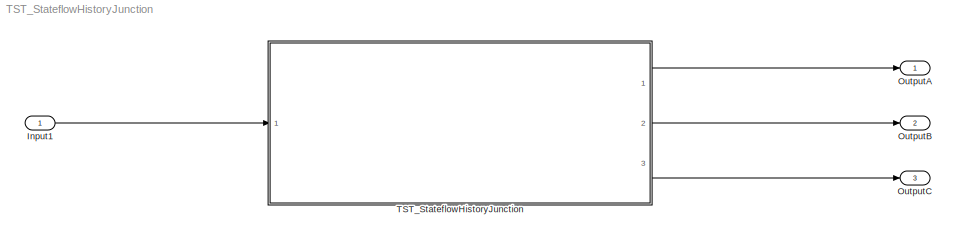
MODEL TST_StateflowHistoryJunction
KIND model
BLOCK [Inport] Input1
  BusOutputAsStruct = on
  IconDisplay = Port number
  OutDataTypeStr = uint32
  SID = 23
BLOCK [Outport] OutputA
  IconDisplay = Port number
  OutDataTypeStr = double
  PortDimensions = 1
  SID = 25
BLOCK [Outport] OutputB
  IconDisplay = Port number
  OutDataTypeStr = double
  Port = 2
  PortDimensions = 1
  SID = 32
BLOCK [Outport] OutputC
  IconDisplay = Port number
  OutDataTypeStr = double
  Port = 3
  PortDimensions = 1
  SID = 37
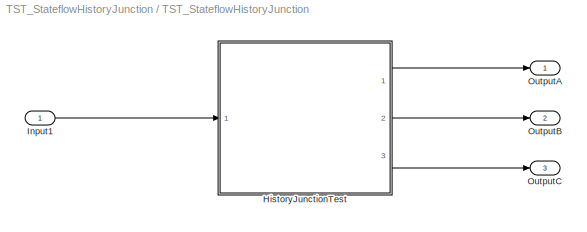
BLOCK [SubSystem] TST_StateflowHistoryJunction
  Ports = [1, 3]
  RequestExecContextInheritance = off
  SID = 2
  TreatAsAtomicUnit = on
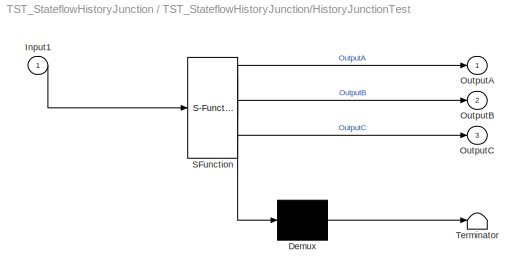
BLOCK [SubSystem] TST_StateflowHistoryJunction/HistoryJunctionTest
  ErrorFcn = Stateflow.Translate.translate
  PermitHierarchicalResolution = ExplicitOnly
  Ports = [1, 3]
  RequestExecContextInheritance = off
  SFBlockType = Chart
  SID = 48
  TreatAsAtomicUnit = on
BLOCK [Demux] TST_StateflowHistoryJunction/HistoryJunctionTest/ Demux 
  Outputs = 1
  Ports = [1, 1]
  SID = 48::14
BLOCK [S-Function] TST_StateflowHistoryJunction/HistoryJunctionTest/ SFunction 
  EnableBusSupport = off
  FunctionName = sf_sfun
  PortCounts = [1 4]
  Ports = [1, 4]
  SFcnIsStateOwnerBlock = off
  SFunctionDeploymentMode = off
  SID = 48::13
  Tag = Stateflow S-Function 2
BLOCK [Terminator] TST_StateflowHistoryJunction/HistoryJunctionTest/ Terminator 
  SID = 48::15
BLOCK [Inport] TST_StateflowHistoryJunction/HistoryJunctionTest/Input1
  IconDisplay = Port number
  SID = 48::9
BLOCK [Outport] TST_StateflowHistoryJunction/HistoryJunctionTest/OutputA
  IconDisplay = Port number
  SID = 48::10
BLOCK [Outport] TST_StateflowHistoryJunction/HistoryJunctionTest/OutputB
  IconDisplay = Port number
  Port = 2
  SID = 48::11
BLOCK [Outport] TST_StateflowHistoryJunction/HistoryJunctionTest/OutputC
  IconDisplay = Port number
  Port = 3
  SID = 48::12
BLOCK [Inport] TST_StateflowHistoryJunction/Input1
  BusOutputAsStruct = on
  IconDisplay = Port number
  OutDataTypeStr = uint32
  SID = 39
BLOCK [Outport] TST_StateflowHistoryJunction/OutputA
  IconDisplay = Port number
  OutDataTypeStr = double
  PortDimensions = 1
  SID = 40
BLOCK [Outport] TST_StateflowHistoryJunction/OutputB
  IconDisplay = Port number
  OutDataTypeStr = double
  Port = 2
  PortDimensions = 1
  SID = 41
BLOCK [Outport] TST_StateflowHistoryJunction/OutputC
  IconDisplay = Port number
  OutDataTypeStr = double
  Port = 3
  PortDimensions = 1
  SID = 42
LINE Input1:1 -> TST_StateflowHistoryJunction:1
LINE TST_StateflowHistoryJunction/HistoryJunctionTest/ Demux :1 -> TST_StateflowHistoryJunction/HistoryJunctionTest/ Terminator :1
LINE TST_StateflowHistoryJunction/HistoryJunctionTest/ SFunction :1 -> TST_StateflowHistoryJunction/HistoryJunctionTest/ Demux :1
LINE TST_StateflowHistoryJunction/HistoryJunctionTest/ SFunction :2 -> TST_StateflowHistoryJunction/HistoryJunctionTest/OutputA:1
LINE TST_StateflowHistoryJunction/HistoryJunctionTest/ SFunction :3 -> TST_StateflowHistoryJunction/HistoryJunctionTest/OutputB:1
LINE TST_StateflowHistoryJunction/HistoryJunctionTest/ SFunction :4 -> TST_StateflowHistoryJunction/HistoryJunctionTest/OutputC:1
LINE TST_StateflowHistoryJunction/HistoryJunctionTest/Input1:1 -> TST_StateflowHistoryJunction/HistoryJunctionTest/ SFunction :1
LINE TST_StateflowHistoryJunction/HistoryJunctionTest:1 -> TST_StateflowHistoryJunction/OutputA:1
LINE TST_StateflowHistoryJunction/HistoryJunctionTest:2 -> TST_StateflowHistoryJunction/OutputB:1
LINE TST_StateflowHistoryJunction/HistoryJunctionTest:3 -> TST_StateflowHistoryJunction/OutputC:1
LINE TST_StateflowHistoryJunction/Input1:1 -> TST_StateflowHistoryJunction/HistoryJunctionTest:1
LINE TST_StateflowHistoryJunction:1 -> OutputA:1
LINE TST_StateflowHistoryJunction:2 -> OutputB:1
LINE TST_StateflowHistoryJunction:3 -> OutputC:1
CHART TST_StateflowHistoryJunction/HistoryJunctionTest states=8 transitions=17
  STATE_LABEL 'SubState1C\\nentry:\\nOutputC = uint32(1);\\nexit:\\nOutputC = uint32(2);'
  STATE_LABEL 'TopStateWithHistory\\nentry:\\nLocal = uint32(10);\\nexit:\\nLocal = uint32(20);'
  STATE_LABEL 'SubState2A\\nentry:\\nOutputA = uint32(10);\\nexit:\\nOutputA = uint32(20);'
  STATE_LABEL 'SubState2B\\nentry:\\nOutputB = uint32(10);\\nexit:\\nOutputB = uint32(20);'
  STATE_LABEL 'SubState2C\\nentry:\\nOutputC = uint32(10);\\nexit:\\nOutputC = uint32(20);'
  STATE_LABEL 'TopStateNoHistory\\nentry:\\nLocal = uint32(1);\\nexit:\\nLocal = uint32(2);'
  STATE_LABEL 'SubState1A\\nentry:\\nOutputA = uint32(1);\\nexit:\\nOutputA = uint32(2);'
  STATE_LABEL 'SubState1B\\nentry:\\nOutputB = uint32(1);\\nexit:\\nOutputB = uint32(2);'
